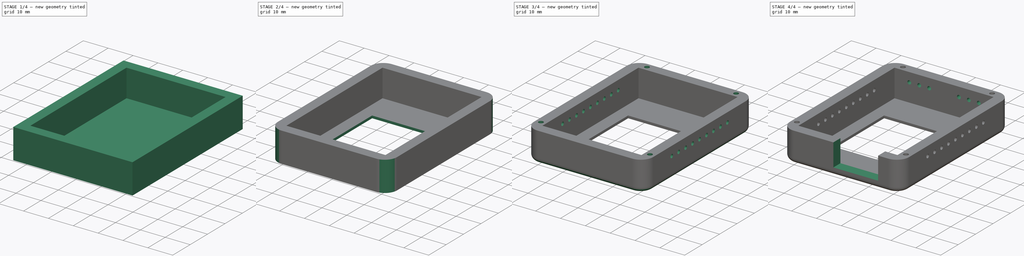
[diagram: build sequence overview — one tinted view per stage of 4, left to right]
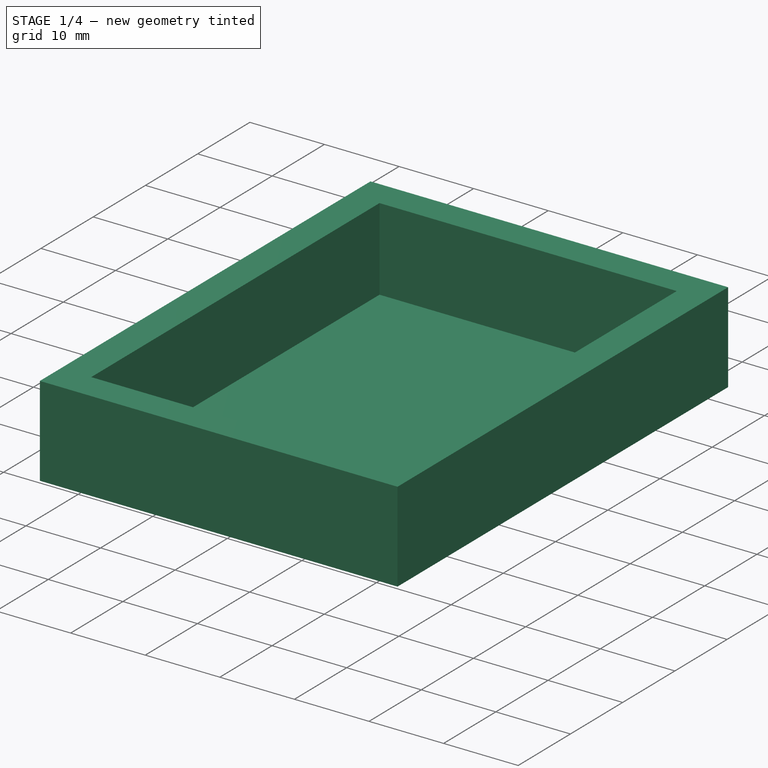
[diagram: stage 1 of 4 — iso view after this stage's code; geometry added in this stage tinted green]
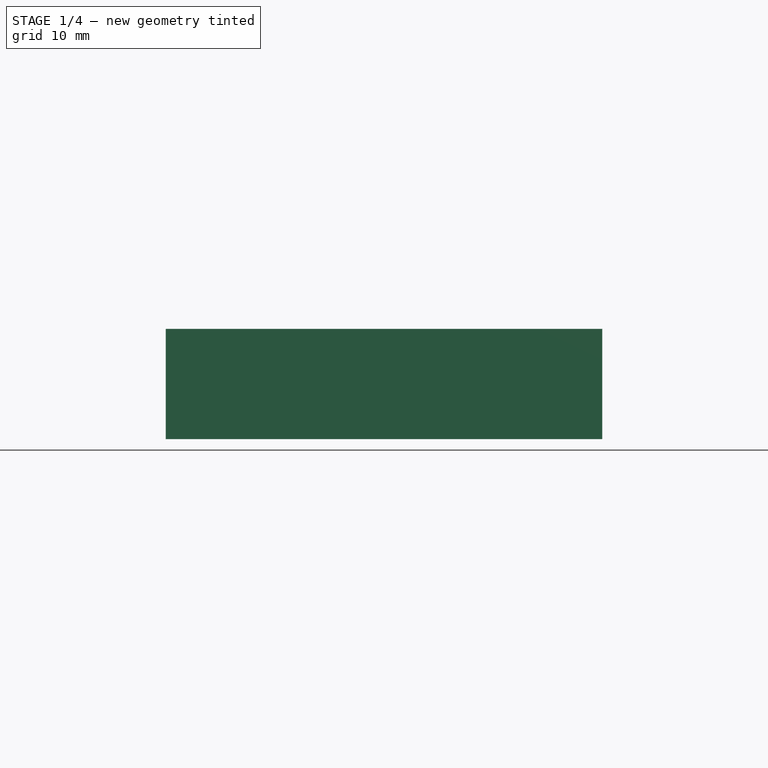
[diagram: stage 1 of 4 — front view after this stage's code; geometry added in this stage tinted green]
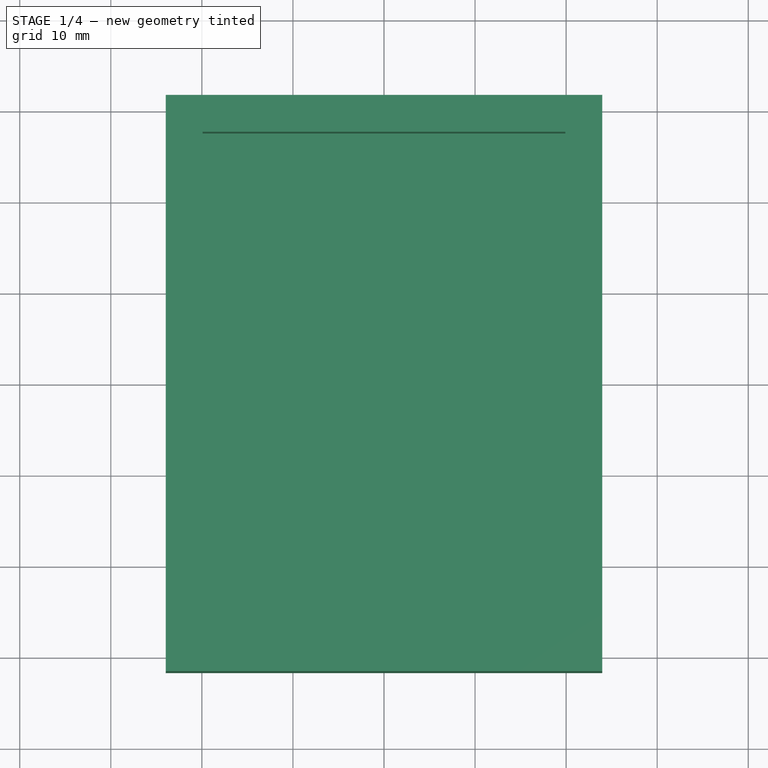
[diagram: stage 1 of 4 — top view after this stage's code; geometry added in this stage tinted green]
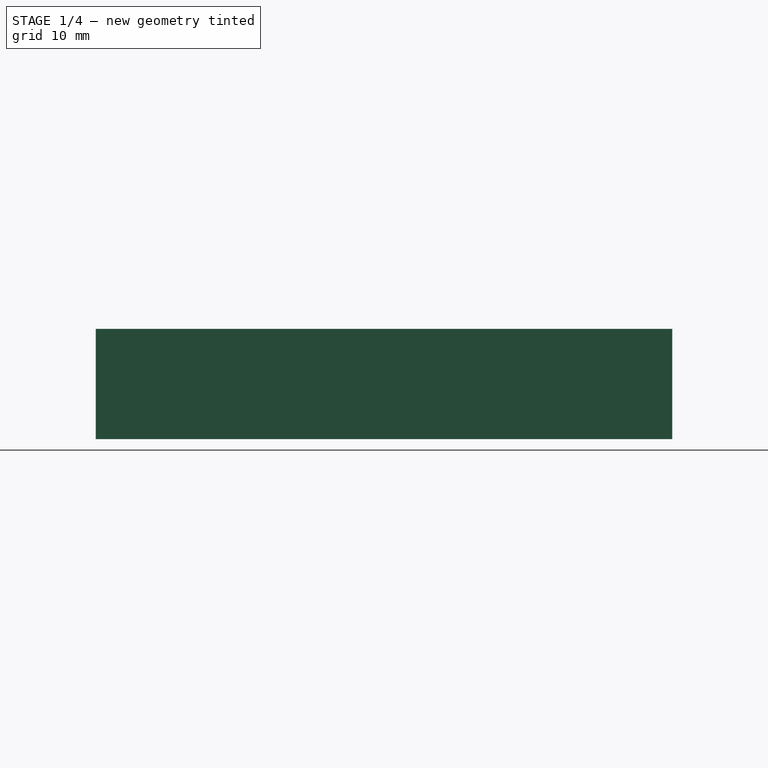
[diagram: stage 1 of 4 — right view after this stage's code; geometry added in this stage tinted green]
FCSTD DOCUMENT  (FreeCAD 0.20R29410 (Git))
Label: enclosure
License: All rights reserved
LicenseURL: http://en.wikipedia.org/wiki/All_rights_reserved
objects: Sketcher::SketchObject×7, PartDesign::Pocket×5, PartDesign::Pad×2, PartDesign::Fillet×2, App::Link×1, PartDesign::Body×1
note: 26 computed .brp shape members not serialized (recipe doc carries the construction recipe); baked Part::Feature solids carry a one-line shape summary decoded from their .brp

FEATURE [Sketcher::SketchObject] Sketch
  FullyConstrained = true
  MapMode = 5
  Support = -> [XY_Plane]
  sketch-geometry (4):
    g0: LineSegment StartX=-23.975 StartY=31.65 StartZ=0 EndX=23.975 EndY=31.65 EndZ=0
    g1: LineSegment StartX=23.975 StartY=31.65 StartZ=0 EndX=23.975 EndY=-31.65 EndZ=0
    g2: LineSegment StartX=23.975 StartY=-31.65 StartZ=0 EndX=-23.975 EndY=-31.65 EndZ=0
    g3: LineSegment StartX=-23.975 StartY=-31.65 StartZ=0 EndX=-23.975 EndY=31.65 EndZ=0
  constraints (10):
    c: Coincident(g0,g1)
    c: Coincident(g1,g2)
    c: Coincident(g2,g3)
    c: Coincident(g3,g0)
    c: Horizontal(g0)
    c: Vertical(g3)
    c: DistanceX(g2,g2) = 47.95
    c: Symmetric(g2,g1,g-2)
    c: DistanceY(g1,g1) = 63.3
    c: Symmetric(g0,g1,g-1)
FEATURE [PartDesign::Pad] Pad
  Direction = (0,0,1)
  Length = 1
  Length2 = 10
  Profile = -> Sketch
  ReferenceAxis = -> Sketch [N_Axis]
  Type = 0
FEATURE [Sketcher::SketchObject] Sketch001
  ExternalGeometry = -> [Pad]
  FullyConstrained = true
  MapMode = 5
  Placement = pos=(0,0,1) rot=(0,0,1;0rad)
  Support = -> [Pad]
  sketch-geometry (8):
    g0: LineSegment StartX=-19.925 StartY=27.6 StartZ=0 EndX=19.925 EndY=27.6 EndZ=0
    g1: LineSegment StartX=19.925 StartY=27.6 StartZ=0 EndX=19.925 EndY=-27.6 EndZ=0
    g2: LineSegment StartX=19.925 StartY=-27.6 StartZ=0 EndX=-19.925 EndY=-27.6 EndZ=0
    g3: LineSegment StartX=-19.925 StartY=-27.6 StartZ=0 EndX=-19.925 EndY=27.6 EndZ=0
    g4: LineSegment StartX=-23.975 StartY=31.65 StartZ=0 EndX=23.975 EndY=31.65 EndZ=0
    g5: LineSegment StartX=23.975 StartY=31.65 StartZ=0 EndX=23.975 EndY=-31.65 EndZ=0
    g6: LineSegment StartX=23.975 StartY=-31.65 StartZ=0 EndX=-23.975 EndY=-31.65 EndZ=0
    g7: LineSegment StartX=-23.975 StartY=-31.65 StartZ=0 EndX=-23.975 EndY=31.65 EndZ=0
  constraints (20):
    c: Coincident(g0,g1)
    c: Coincident(g1,g2)
    c: Coincident(g2,g3)
    c: Coincident(g3,g0)
    c: Horizontal(g0)
    c: Vertical(g1)
    c: Coincident(g4,g5)
    c: Coincident(g5,g6)
    c: Coincident(g6,g7)
    c: Coincident(g7,g4)
    c: Horizontal(g4)
    c: Horizontal(g6)
    c: Vertical(g5)
    c: Vertical(g7)
    c: Coincident(g4,g-3)
    c: Coincident(g5,g-4)
    c: Symmetric(g2,g1,g-2)
    c: Symmetric(g0,g2,g-1)
    c: DistanceX(g1,g5) = 4.05
    c: DistanceY(g5,g1) = 4.05
FEATURE [PartDesign::Pad] Pad001
  BaseFeature = -> Pad
  Direction = (0,0,1)
  Length = 11.1
  Length2 = 10
  Profile = -> Sketch001
  ReferenceAxis = -> Sketch001 [N_Axis]
  Type = 0
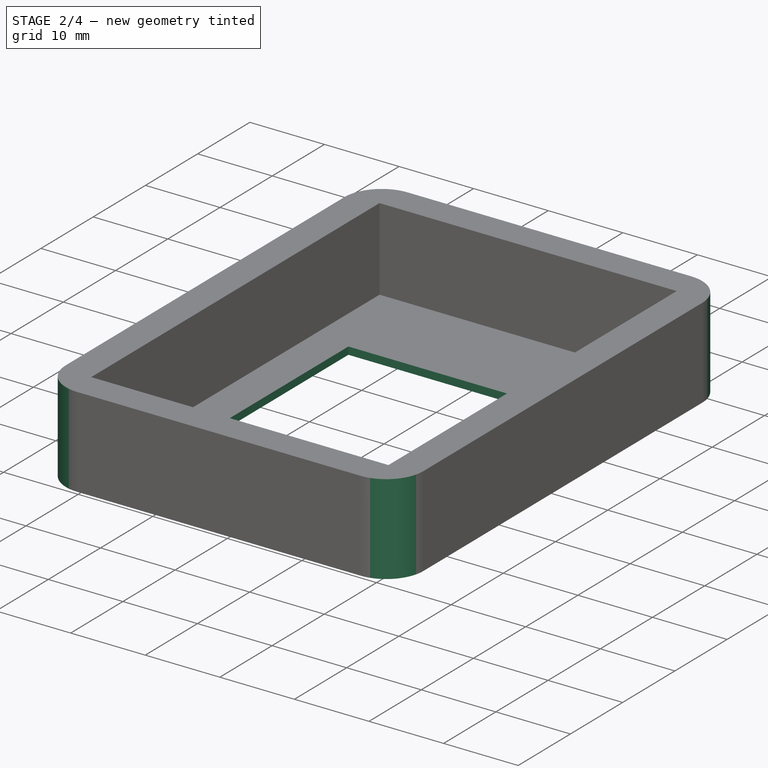
[diagram: stage 2 of 4 — iso view after this stage's code; geometry added in this stage tinted green]
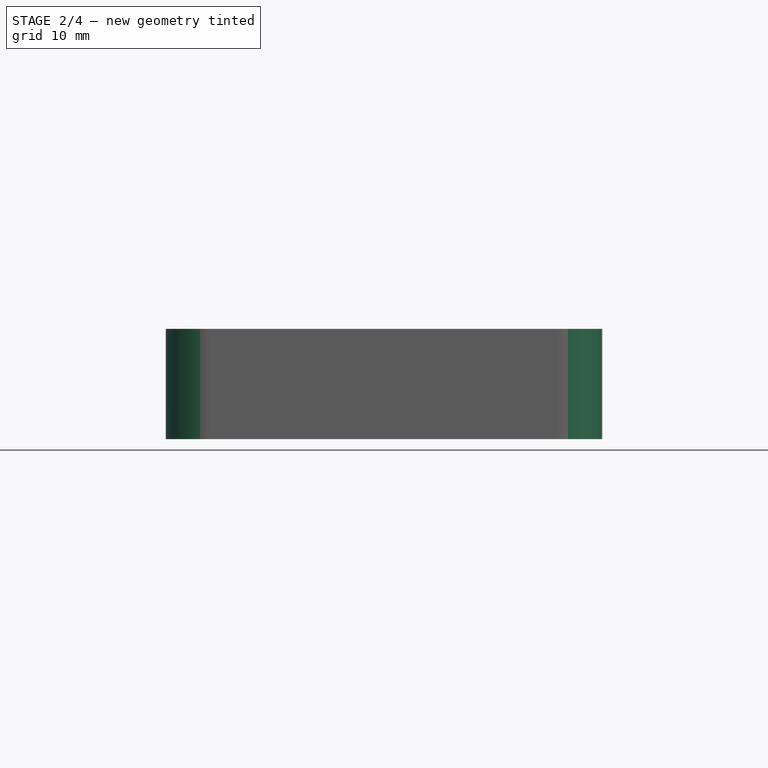
[diagram: stage 2 of 4 — front view after this stage's code; geometry added in this stage tinted green]
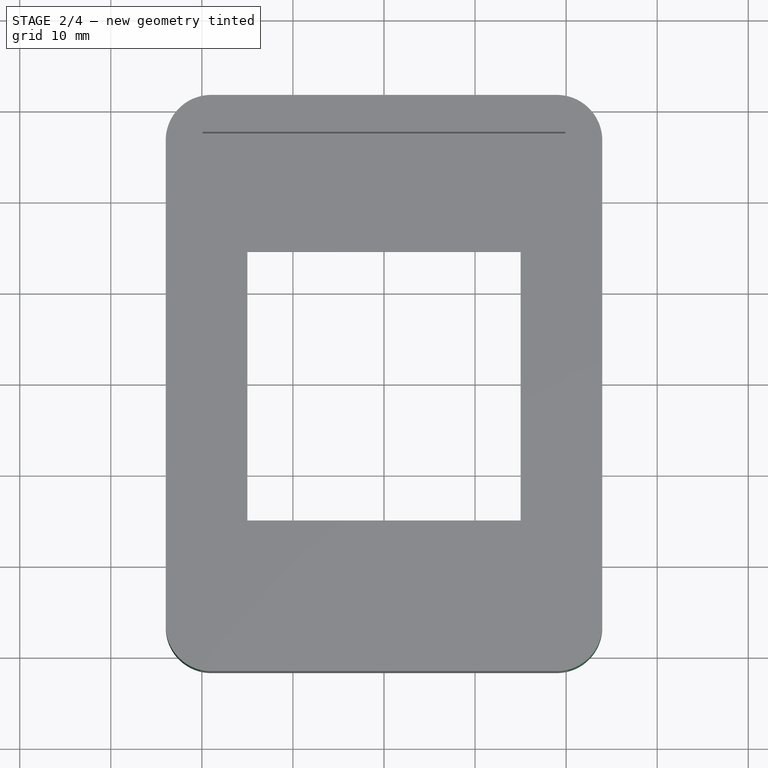
[diagram: stage 2 of 4 — top view after this stage's code; geometry added in this stage tinted green]
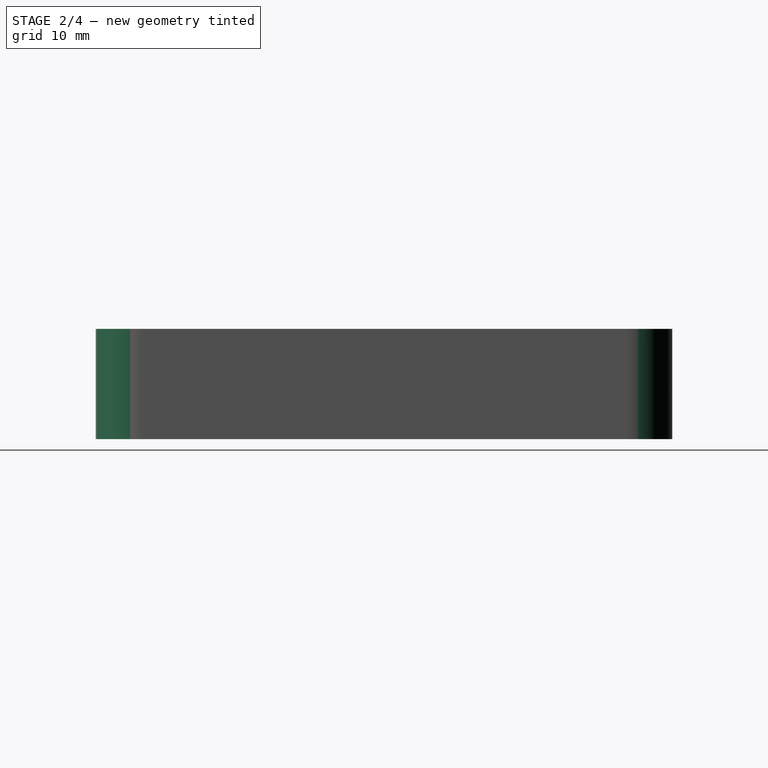
[diagram: stage 2 of 4 — right view after this stage's code; geometry added in this stage tinted green]
FEATURE [App::Link] Link  label="enclosure001"
  LinkedObject = -> Body
FEATURE [Sketcher::SketchObject] Sketch003
  ExternalGeometry = -> [Pad001]
  FullyConstrained = true
  MapMode = 5
  Placement = pos=(0,0,1) rot=(0,0,1;0rad)
  sketch-geometry (4):
    g0: LineSegment StartX=-15 StartY=14.6 StartZ=0 EndX=15 EndY=14.6 EndZ=0
    g1: LineSegment StartX=15 StartY=14.6 StartZ=0 EndX=15 EndY=-14.9 EndZ=0
    g2: LineSegment StartX=15 StartY=-14.9 StartZ=0 EndX=-15 EndY=-14.9 EndZ=0
    g3: LineSegment StartX=-15 StartY=-14.9 StartZ=0 EndX=-15 EndY=14.6 EndZ=0
  constraints (12):
    c: Coincident(g0,g1)
    c: Coincident(g1,g2)
    c: Coincident(g2,g3)
    c: Coincident(g3,g0)
    c: Horizontal(g2)
    c: Vertical(g1)
    c: Vertical(g3)
    c: DistanceX(g0,g0) = 30
    c: DistanceY(g1,g1) = 29.5
    c: DistanceX(g-1,g0) = 15
    c: Horizontal(g0)
    c: DistanceY(g0,g-3) = 13
FEATURE [PartDesign::Pocket] Pocket
  BaseFeature = -> Pad001
  Direction = (0,0,-1)
  Length = 0
  Length2 = 5
  Profile = -> Sketch003
  ReferenceAxis = -> Sketch003 [N_Axis]
  Type = 3
  UpToFace = -> Pad001 [Face4]
FEATURE [PartDesign::Fillet] Fillet
  Base = -> Pocket [Edge22,Edge8,Edge20,Edge5,Edge16,Edge1,Edge17,Edge2]
  BaseFeature = -> Pocket
  Radius = 5
  SupportTransform = false
  UseAllEdges = false
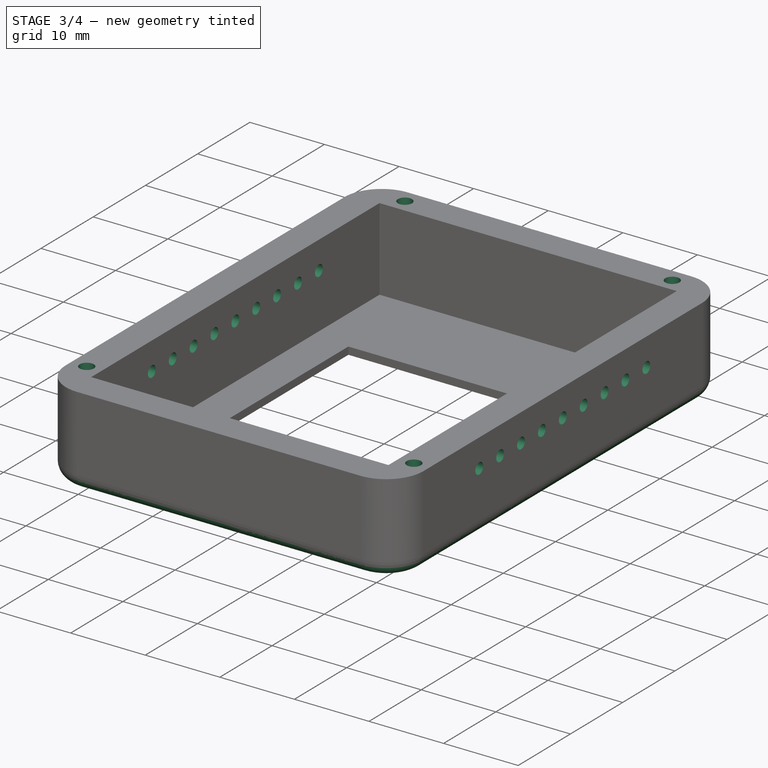
[diagram: stage 3 of 4 — iso view after this stage's code; geometry added in this stage tinted green]
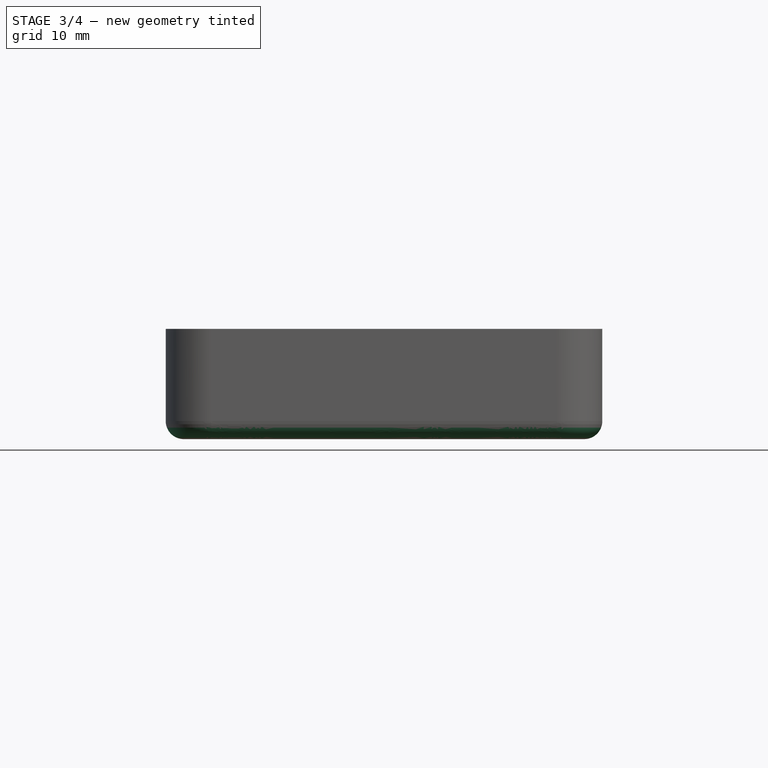
[diagram: stage 3 of 4 — front view after this stage's code; geometry added in this stage tinted green]
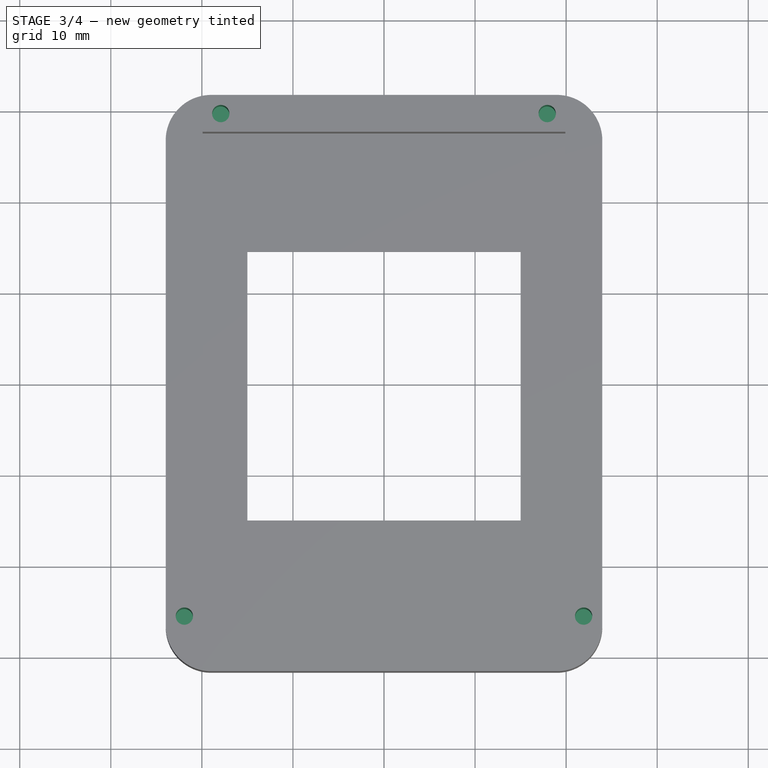
[diagram: stage 3 of 4 — top view after this stage's code; geometry added in this stage tinted green]
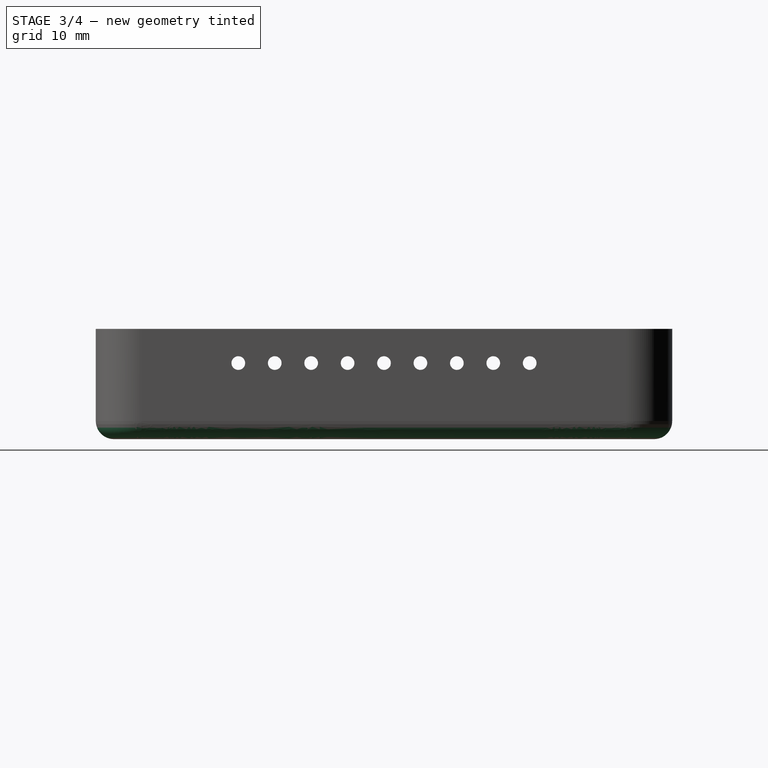
[diagram: stage 3 of 4 — right view after this stage's code; geometry added in this stage tinted green]
FEATURE [PartDesign::Fillet] Fillet001
  Base = -> Fillet [Edge1,Edge5,Edge7]
  BaseFeature = -> Fillet
  Radius = 1.99
  SupportTransform = false
  UseAllEdges = false
FEATURE [Sketcher::SketchObject] Sketch005
  ExternalGeometry = -> [Fillet001]
  FullyConstrained = true
  MapMode = 5
  Placement = pos=(0,0,12.1) rot=(0,0,1;0rad)
  Support = -> [Fillet001]
  sketch-geometry (4):
    g0: Circle CenterX=17.925 CenterY=29.6 CenterZ=0 NormalX=0 NormalY=0 NormalZ=1 AngleXU=0 Radius=0.95
    g1: Circle CenterX=-17.925 CenterY=29.6 CenterZ=0 NormalX=0 NormalY=0 NormalZ=1 AngleXU=0 Radius=0.95
    g2: Circle CenterX=21.925 CenterY=-25.6 CenterZ=0 NormalX=0 NormalY=0 NormalZ=1 AngleXU=0 Radius=0.95
    g3: Circle CenterX=-21.925 CenterY=-25.6 CenterZ=0 NormalX=0 NormalY=0 NormalZ=1 AngleXU=0 Radius=0.95
  constraints (13):
    c: Diameter(g0) = 1.9
    c: DistanceY(g-3,g-5) = 4.05
    c: DistanceY(g-3,g1) = 2
    c: DistanceX(g-3,g1) = 2
    c: Equal(g1,g0)
    c: DistanceY(g-6,g0) = 2
    c: DistanceX(g0,g-8) = 2
    c: Diameter(g2) = 1.9
    c: DistanceX(g-8,g2) = 2
    c: DistanceY(g-8,g2) = 2
    c: Diameter(g3) = 1.9
    c: DistanceX(g3,g-9) = 2
    c: DistanceY(g-9,g3) = 2
FEATURE [PartDesign::Pocket] Pocket001
  BaseFeature = -> Fillet001
  Direction = (0,0,-1)
  Length = 10
  Length2 = 5
  Profile = -> Sketch005
  ReferenceAxis = -> Sketch005 [N_Axis]
  Type = 0
FEATURE [Sketcher::SketchObject] Sketch006
  AttachmentOffset = pos=(0,-2,0) rot=(0,0,1;0rad)
  ExternalGeometry = -> [Pocket001]
  FullyConstrained = false
  MapMode = 5
  Placement = pos=(23.975,0,-2) rot=(0.57735,0.57735,0.57735;2.0944rad)
  Support = -> [Pocket001]
  sketch-geometry (11):
    g0: Circle CenterX=16 CenterY=10.35 CenterZ=0 NormalX=0 NormalY=0 NormalZ=1 AngleXU=0 Radius=0.75
    g1: LineSegment StartX=31.0335 StartY=10.35 StartZ=0 EndX=-29.8986 EndY=10.35 EndZ=0
    g2: Circle CenterX=12 CenterY=10.35 CenterZ=0 NormalX=0 NormalY=0 NormalZ=1 AngleXU=0 Radius=0.75
    g3: Circle CenterX=4 CenterY=10.35 CenterZ=0 NormalX=0 NormalY=0 NormalZ=1 AngleXU=0 Radius=0.75
    g4: Circle CenterX=8 CenterY=10.35 CenterZ=0 NormalX=0 NormalY=0 NormalZ=1 AngleXU=0 Radius=0.75
    g5: LineSegment StartX=-6.35 StartY=11.7225 StartZ=0 EndX=-6.35 EndY=9.03689 EndZ=0
    g6: Circle CenterX=-4 CenterY=10.35 CenterZ=0 NormalX=0 NormalY=0 NormalZ=1 AngleXU=0 Radius=0.75
    g7: Circle CenterX=0 CenterY=10.35 CenterZ=0 NormalX=0 NormalY=0 NormalZ=1 AngleXU=0 Radius=0.75
    g8: Circle CenterX=-12 CenterY=10.35 CenterZ=0 NormalX=0 NormalY=0 NormalZ=1 AngleXU=0 Radius=0.75
    g9: Circle CenterX=-8 CenterY=10.35 CenterZ=0 NormalX=0 NormalY=0 NormalZ=1 AngleXU=0 Radius=0.75
    g10: Circle CenterX=-16 CenterY=10.35 CenterZ=0 NormalX=0 NormalY=0 NormalZ=1 AngleXU=0 Radius=0.75
  constraints (30):
    c: Diameter(g0) = 1.5
    c: Horizontal(g1)
    c: PointOnObject(g0,g1)
    c: PointOnObject(g2,g1)
    c: PointOnObject(g4,g1)
    c: Vertical(g5)
    c: DistanceX(g3,g4) = 4
    c: DistanceX(g4,g2) = 4
    c: DistanceX(g2,g0) = 4
    c: PointOnObject(g3,g1)
    c: DistanceX(g6,g7) = 4
    c: PointOnObject(g7,g1)
    c: DistanceX(g7,g3) = 4
    c: PointOnObject(g6,g1)
    c: PointOnObject(g8,g1)
    c: Equal(g6,g7)
    c: Equal(g7,g3)
    c: Equal(g3,g4)
    c: Equal(g4,g2)
    c: Equal(g2,g0)
    c: PointOnObject(g9,g1)
    c: Equal(g9,g0)
    c: DistanceX(g9,g6) = 4
    c: DistanceX(g8,g9) = 4
    c: Equal(g8,g0)
    c: PointOnObject(g10,g1)
    c: DistanceX(g10,g8) = 4
    c: Equal(g10,g0)
    c: DistanceY(g1,g-3) = 3.75
    c: PointOnObject(g7,g-2)
FEATURE [PartDesign::Pocket] Pocket002
  BaseFeature = -> Pocket001
  Direction = (-1,0,0)
  Length = 0
  Length2 = 5
  Profile = -> Sketch006
  ReferenceAxis = -> Sketch006 [N_Axis]
  Type = 1
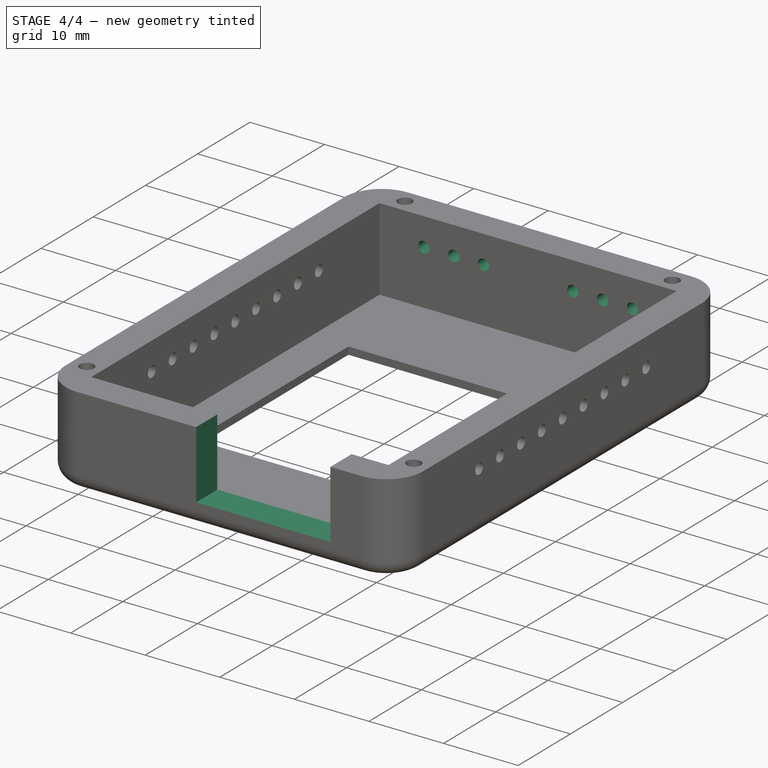
[diagram: stage 4 of 4 — iso view after this stage's code; geometry added in this stage tinted green]
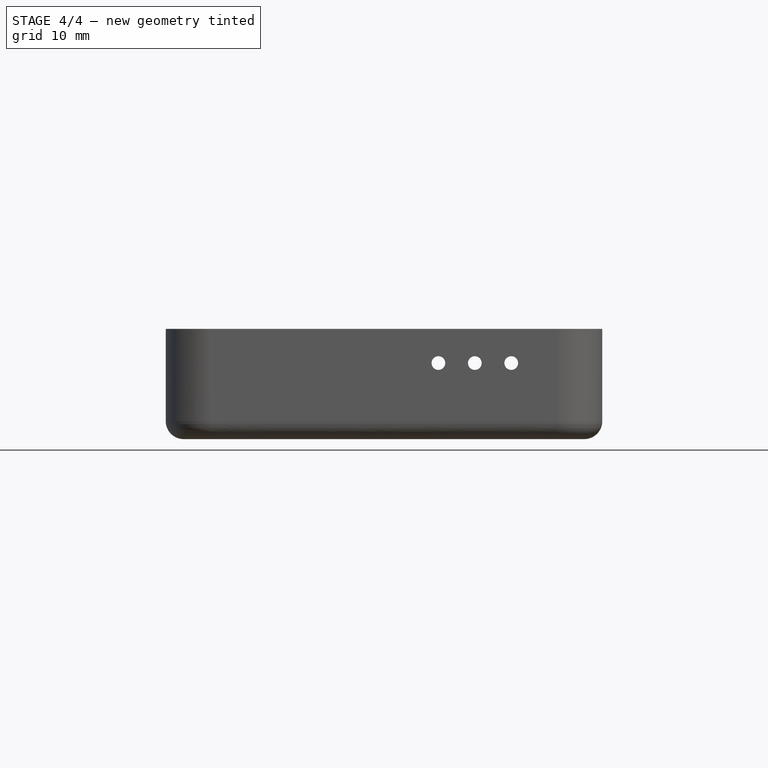
[diagram: stage 4 of 4 — front view after this stage's code; geometry added in this stage tinted green]
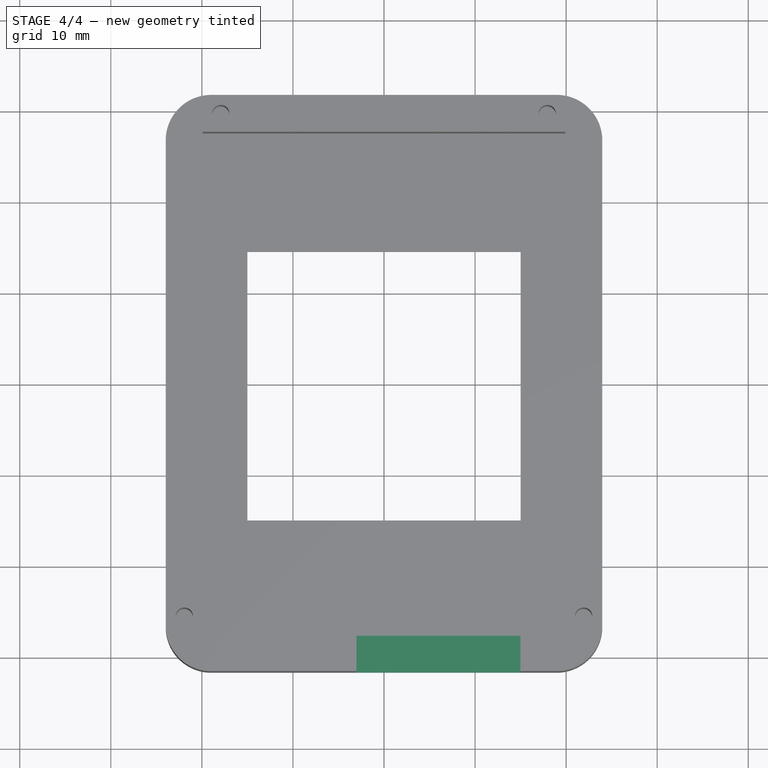
[diagram: stage 4 of 4 — top view after this stage's code; geometry added in this stage tinted green]
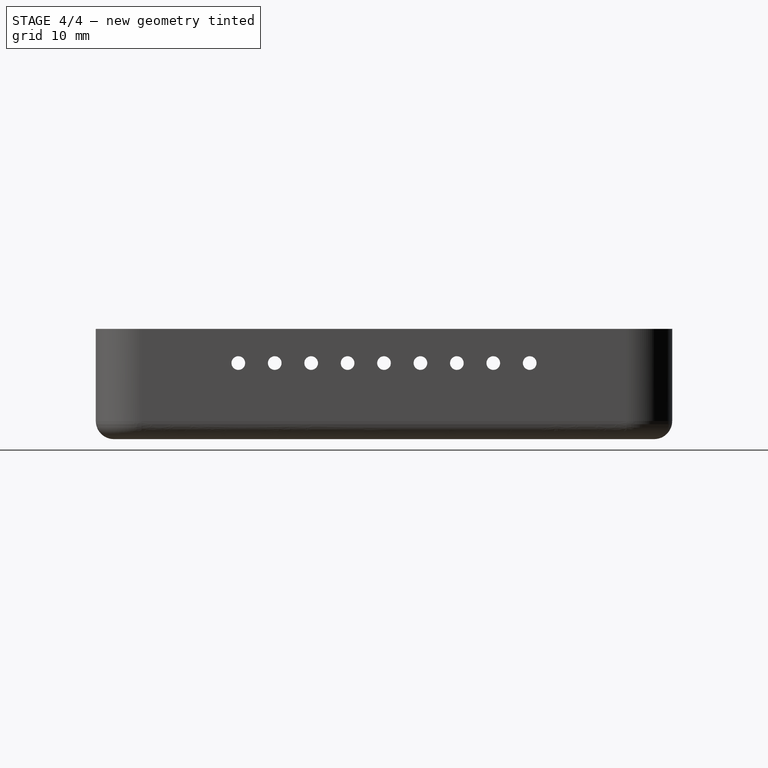
[diagram: stage 4 of 4 — right view after this stage's code; geometry added in this stage tinted green]
FEATURE [Sketcher::SketchObject] Sketch007
  ExternalGeometry = -> [Pocket002]
  FullyConstrained = false
  MapMode = 5
  Placement = pos=(0,31.65,0) rot=(0,0.707107,0.707107;3.14159rad)
  Support = -> [Pocket002]
  sketch-geometry (7):
    g0: LineSegment StartX=-20.9174 StartY=8.35 StartZ=0 EndX=22.0003 EndY=8.35 EndZ=0
    g1: Circle CenterX=9.975 CenterY=8.35 CenterZ=0 NormalX=0 NormalY=0 NormalZ=1 AngleXU=0 Radius=0.75
    g2: Circle CenterX=5.975 CenterY=8.35 CenterZ=0 NormalX=0 NormalY=0 NormalZ=1 AngleXU=0 Radius=0.75
    g3: Circle CenterX=-13.975 CenterY=8.35 CenterZ=0 NormalX=0 NormalY=0 NormalZ=1 AngleXU=0 Radius=0.75
    g4: Circle CenterX=-9.975 CenterY=8.35 CenterZ=0 NormalX=0 NormalY=0 NormalZ=1 AngleXU=0 Radius=0.75
    g5: Circle CenterX=-5.975 CenterY=8.35 CenterZ=0 NormalX=0 NormalY=0 NormalZ=1 AngleXU=0 Radius=0.75
    g6: Circle CenterX=13.975 CenterY=8.35 CenterZ=0 NormalX=0 NormalY=0 NormalZ=1 AngleXU=0 Radius=0.75
  constraints (20):
    c: Horizontal(g0)
    c: PointOnObject(g1,g0)
    c: PointOnObject(g2,g0)
    c: DistanceX(g2,g1) = 4
    c: DistanceX(g3,g4) = 4
    c: DistanceX(g4,g5) = 4
    c: PointOnObject(g4,g0)
    c: PointOnObject(g5,g0)
    c: PointOnObject(g3,g0)
    c: Equal(g3,g4)
    c: Equal(g4,g5)
    c: Equal(g1,g2)
    c: PointOnObject(g6,g0)
    c: DistanceX(g1,g6) = 4
    c: Radius(g5) = 0.75
    c: Equal(g3,g6)
    c: Equal(g6,g1)
    c: DistanceY(g0,g-3) = 3.75
    c: DistanceX(g6,g-3) = 5
    c: DistanceX(g-3,g3) = 5
FEATURE [PartDesign::Pocket] Pocket003
  BaseFeature = -> Pocket002
  Direction = (0,-1,2e-16)
  Length = 0
  Length2 = 5
  Profile = -> Sketch007
  ReferenceAxis = -> Sketch007 [N_Axis]
  Type = 2
FEATURE [Sketcher::SketchObject] Sketch008
  ExternalGeometry = -> [Pocket003]
  FullyConstrained = false
  MapMode = 5
  Placement = pos=(0,-31.65,0) rot=(1,0,0;1.5708rad)
  Support = -> [Pocket003]
  sketch-geometry (5):
    g0: LineSegment StartX=5.975 StartY=15.6614 StartZ=0 EndX=5.975 EndY=-1.54377 EndZ=0
    g1: LineSegment StartX=-3.025 StartY=14.1 StartZ=0 EndX=14.975 EndY=14.1 EndZ=0
    g2: LineSegment StartX=14.975 StartY=14.1 StartZ=0 EndX=14.975 EndY=2.99 EndZ=0
    g3: LineSegment StartX=14.975 StartY=2.99 StartZ=0 EndX=-3.025 EndY=2.99 EndZ=0
    g4: LineSegment StartX=-3.025 StartY=2.99 StartZ=0 EndX=-3.025 EndY=14.1 EndZ=0
  constraints (13):
    c: DistanceX(g0,g-3) = 13
    c: Vertical(g0)
    c: Coincident(g1,g2)
    c: Coincident(g2,g3)
    c: Coincident(g3,g4)
    c: Coincident(g4,g1)
    c: Horizontal(g3)
    c: Vertical(g2)
    c: Vertical(g4)
    c: DistanceX(g1,g1) = 18
    c: Symmetric(g1,g1,g0)
    c: DistanceY(g-3,g1) = 2
    c: DistanceY(g-4,g2) = 1
FEATURE [PartDesign::Pocket] Pocket004
  BaseFeature = -> Pocket003
  Direction = (0,1,-2e-16)
  Length = 5
  Length2 = 5
  Profile = -> Sketch008
  ReferenceAxis = -> Sketch008 [N_Axis]
  Type = 2
FEATURE [PartDesign::Body] Body  label="enclosure"
  Group = -> [Sketch,Pad,Sketch001,Pad001,Sketch003,Pocket,Fillet,Fillet001,Sketch005,Pocket001,Sketch006,Pocket002,Sketch007,Pocket003,Sketch008,Pocket004]
  Origin = -> Origin
  Tip = -> Pocket004
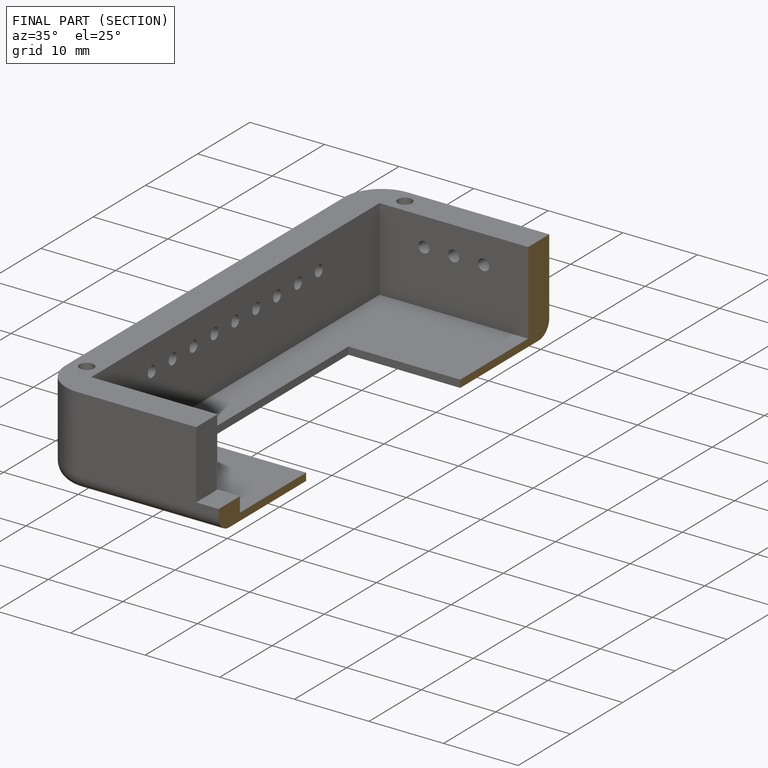
[diagram: finished part — half-section view (interior)]
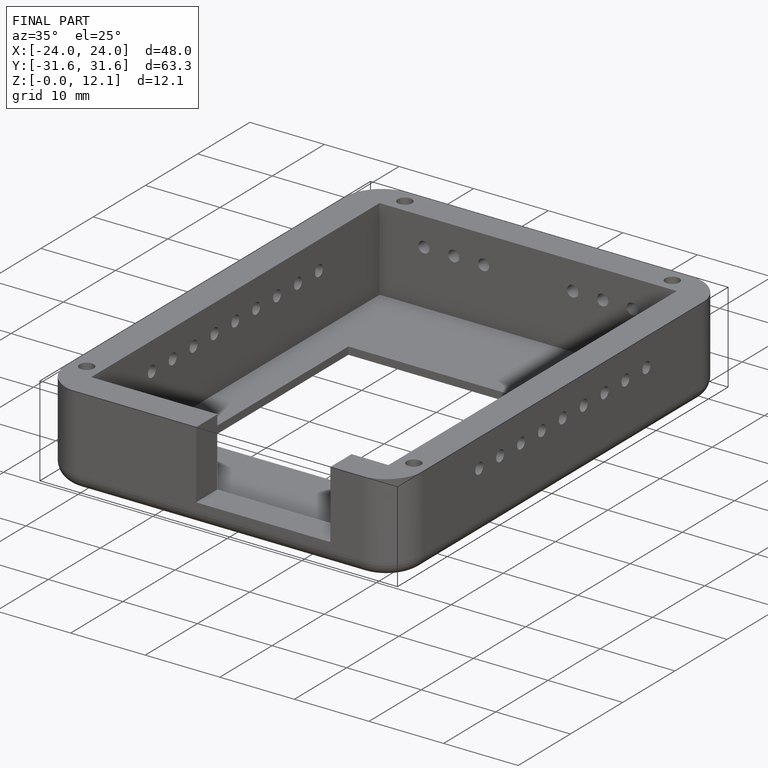
[diagram: finished part — iso view with bounding-box wireframe]
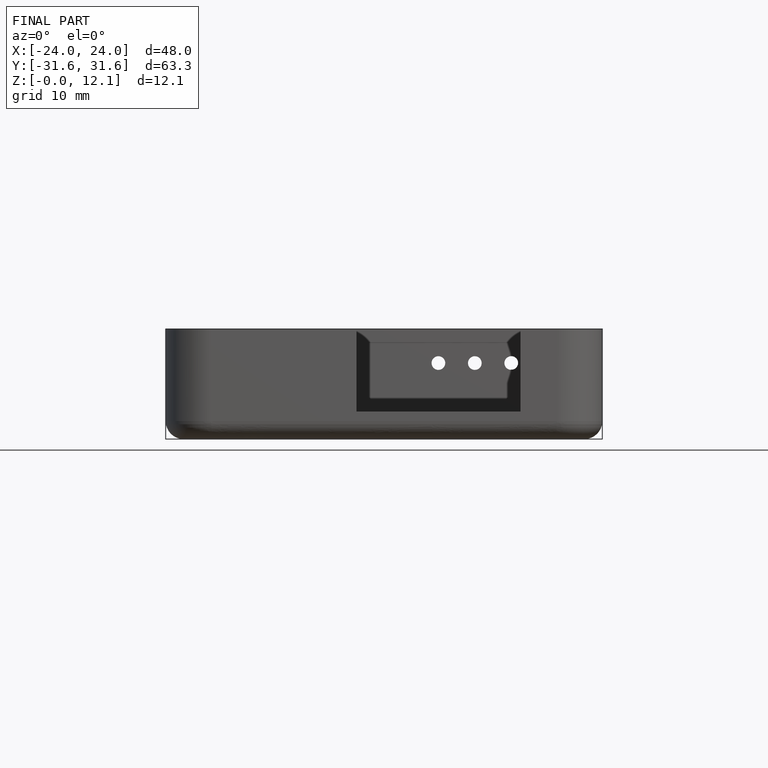
[diagram: finished part — front view with bounding-box wireframe]
